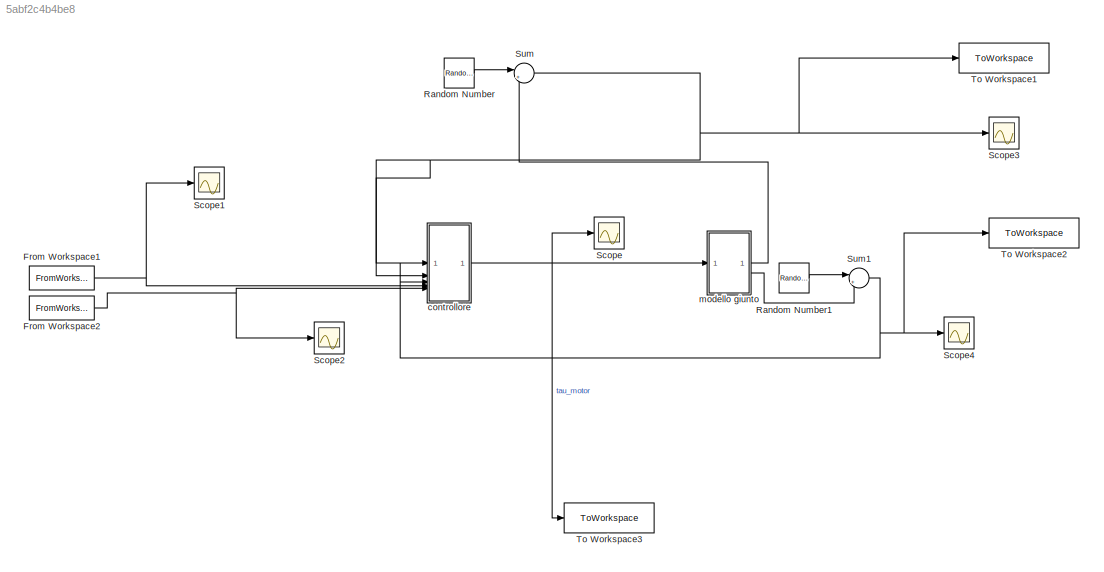
MODEL slx_5abf2c4b4be8
KIND model
CONFIG AbsTol = 1e-9
CONFIG EnableMultiTasking = off
CONFIG FixedStep = 0.001
CONFIG MaxStep = auto
CONFIG MinStep = auto
CONFIG RelTol = 1e-7
CONFIG SampleTimeConstraint = Unconstrained
CONFIG SolverName = ode45
CONFIG StartTime = 0.0
CONFIG StopTime = 10
BLOCK [FromWorkspace] From Workspace1
  OutputAfterFinalValue = Holding final value
  VariableName = tau_jd_input
BLOCK [FromWorkspace] From Workspace2
  OutputAfterFinalValue = Holding final value
  VariableName = theta_d_input
BLOCK [RandomNumber] Random Number
  SampleTime = 0.001
  Variance = 0
BLOCK [RandomNumber] Random Number1
  SampleTime = 0.001
  Variance = 0
BLOCK [Scope] Scope
  ActiveDisplayYMaximum = 329.83772179817618
  ActiveDisplayYMinimum = -346.7950077033837
  DataLoggingVariableName = ScopeData5
  Floating = off
  GraphicalSettings = {"Style":{"BackgroundColor":[0.12941176470588237,0.12941176470588237,0.12941176470588237],"AxesColor":[0.07058823529411765,0.07058823529411765,0.07058823529411765],"LabelsColor":[0.8509803921568627,0.8509803921568627,0.8509803921568627],"PreserveColors":false,"Visible":[true],"LineStyle":["-"],"LineWidth":[1.5],"BarWidth":[0.9],"LineColor":["auto"],"LineFaceAlpha":[1],"LineEdgeAlpha":[1],"Marker":...<+1999ch>
  MultipleDisplayCache = [{"MaxYLimMag":2.7765687867392996,"MaxYLimReal":329.83772179817618,"MinYLimMag":0,"MinYLimReal":-346.7950077033837,"PlotAsMagnitudePhase":false,"ShowGrid":true,"ShowLegend":false,"Title":"%<SignalLabel>","YLabel":""}]
  NumInputPorts = 1
  ScopeFrameLocation = window
  Visible = on
  WasSavedAsWebScope = on
  WindowPosition = [476.000000,281.000000,560.000000,420.000000,]
BLOCK [Scope] Scope1
  ActiveDisplayYMaximum = 1
  ActiveDisplayYMinimum = -1
  DataLoggingVariableName = ScopeData6
  Floating = off
  GraphicalSettings = {"Style":{"BackgroundColor":[0.12941176470588237,0.12941176470588237,0.12941176470588237],"AxesColor":[0.07058823529411765,0.07058823529411765,0.07058823529411765],"LabelsColor":[0.8509803921568627,0.8509803921568627,0.8509803921568627],"PreserveColors":false,"Visible":[true],"LineStyle":["-"],"LineWidth":[1.5],"BarWidth":[0.9],"LineColor":["auto"],"LineFaceAlpha":[1],"LineEdgeAlpha":[1],"Marker":...<+2014ch>
  MultipleDisplayCache = [{"MaxYLimMag":1,"MaxYLimReal":1,"MinYLimMag":0,"MinYLimReal":-1,"PlotAsMagnitudePhase":false,"ShowGrid":true,"ShowLegend":false,"Title":"%<SignalLabel>","YLabel":""}]
  NumInputPorts = 1
  ScopeFrameLocation = window
  WasSavedAsWebScope = on
  WindowPosition = [476.000000,281.000000,560.000000,420.000000,]
BLOCK [Scope] Scope2
  ActiveDisplayYMaximum = 1
  ActiveDisplayYMinimum = -1
  DataLoggingVariableName = ScopeData7
  Floating = off
  GraphicalSettings = {"Style":{"BackgroundColor":[0.12941176470588237,0.12941176470588237,0.12941176470588237],"AxesColor":[0.07058823529411765,0.07058823529411765,0.07058823529411765],"LabelsColor":[0.8509803921568627,0.8509803921568627,0.8509803921568627],"PreserveColors":false,"Visible":[true],"LineStyle":["-"],"LineWidth":[1.5],"BarWidth":[0.9],"LineColor":["auto"],"LineFaceAlpha":[1],"LineEdgeAlpha":[1],"Marker":...<+2014ch>
  MultipleDisplayCache = [{"MaxYLimMag":1,"MaxYLimReal":1,"MinYLimMag":0,"MinYLimReal":-1,"PlotAsMagnitudePhase":false,"ShowGrid":true,"ShowLegend":false,"Title":"%<SignalLabel>","YLabel":""}]
  NumInputPorts = 1
  ScopeFrameLocation = window
  WasSavedAsWebScope = on
  WindowPosition = [476.000000,281.000000,560.000000,420.000000,]
BLOCK [Scope] Scope3
  ActiveDisplayYMaximum = 16.890529809572982
  ActiveDisplayYMinimum = -11.562827971819823
  DataLoggingVariableName = ScopeData8
  Floating = off
  GraphicalSettings = {"Style":{"BackgroundColor":[0.12941176470588237,0.12941176470588237,0.12941176470588237],"AxesColor":[0.07058823529411765,0.07058823529411765,0.07058823529411765],"LabelsColor":[0.8509803921568627,0.8509803921568627,0.8509803921568627],"PreserveColors":false,"Visible":[true],"LineStyle":["-"],"LineWidth":[1.5],"BarWidth":[0.9],"LineColor":["auto"],"LineFaceAlpha":[1],"LineEdgeAlpha":[1],"Marker":...<+1991ch>
  MultipleDisplayCache = [{"MaxYLimMag":2.2624222804883605,"MaxYLimReal":16.890529809572982,"MinYLimMag":0,"MinYLimReal":-11.562827971819823,"PlotAsMagnitudePhase":false,"ShowGrid":true,"ShowLegend":false,"Title":"%<SignalLabel>","YLabel":""}]
  NumInputPorts = 1
  ScopeFrameLocation = window
  WasSavedAsWebScope = on
  WindowPosition = [724.000000,349.000000,560.000000,420.000000,]
BLOCK [Scope] Scope4
  ActiveDisplayYMaximum = 2.020941359764075E+15
  ActiveDisplayYMinimum = -6.07092860920146E+14
  DataLoggingVariableName = ScopeData9
  Floating = off
  GraphicalSettings = {"Style":{"BackgroundColor":[0.12941176470588237,0.12941176470588237,0.12941176470588237],"AxesColor":[0.07058823529411765,0.07058823529411765,0.07058823529411765],"LabelsColor":[0.8509803921568627,0.8509803921568627,0.8509803921568627],"PreserveColors":false,"Visible":[true],"LineStyle":["-"],"LineWidth":[1.5],"BarWidth":[0.9],"LineColor":["auto"],"LineFaceAlpha":[1],"LineEdgeAlpha":[1],"Marker":...<+1981ch>
  MultipleDisplayCache = [{"MaxYLimMag":4.4920838769461326,"MaxYLimReal":2.020941359764075E+15,"MinYLimMag":0,"MinYLimReal":-6.07092860920146E+14,"PlotAsMagnitudePhase":false,"ShowGrid":true,"ShowLegend":false,"Title":"%<SignalLabel>","YLabel":""}]
  NumInputPorts = 1
  ScopeFrameLocation = window
  Visible = on
  WasSavedAsWebScope = on
  WindowPosition = [163.000000,349.000000,560.000000,420.000000,]
BLOCK [Sum] Sum
  Inputs = |++
BLOCK [Sum] Sum1
  Inputs = |++
BLOCK [ToWorkspace] To Workspace1
  MaxDataPoints = inf
  SampleTime = -1
  SaveFormat = Timeseries
  VariableName = theta
BLOCK [ToWorkspace] To Workspace2
  MaxDataPoints = inf
  SampleTime = -1
  SaveFormat = Timeseries
  VariableName = tau_J
BLOCK [ToWorkspace] To Workspace3
  FixptAsFi = on
  MaxDataPoints = inf
  SampleTime = -1
  SaveFormat = Timeseries
  VariableName = tau_ctrl
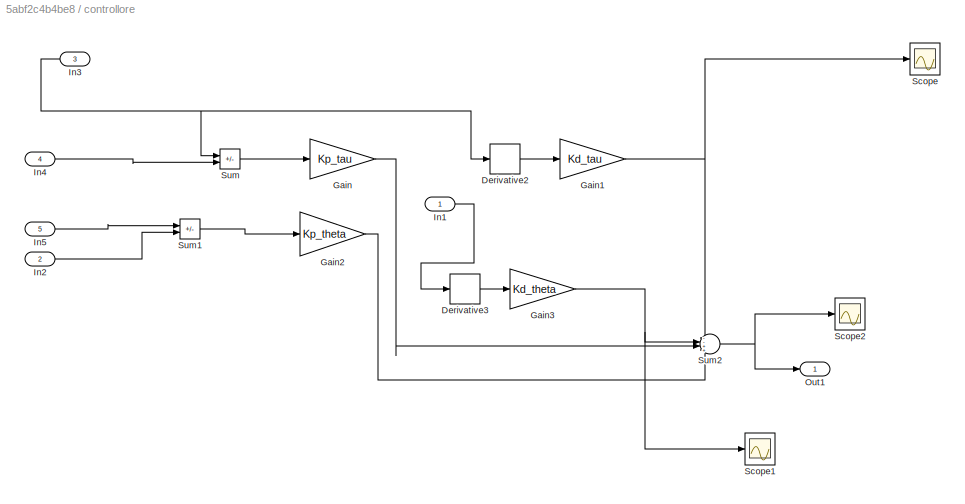
BLOCK [SubSystem] controllore
BLOCK [Derivative] controllore/Derivative2
BLOCK [Derivative] controllore/Derivative3
BLOCK [Gain] controllore/Gain
  Gain = Kp_tau
BLOCK [Gain] controllore/Gain1
  Gain = Kd_tau
BLOCK [Gain] controllore/Gain2
  Gain = Kp_theta
BLOCK [Gain] controllore/Gain3
  Gain = Kd_theta
BLOCK [Inport] controllore/In1
BLOCK [Inport] controllore/In2
  Port = 2
BLOCK [Inport] controllore/In3
  Port = 3
BLOCK [Inport] controllore/In4
  Port = 4
BLOCK [Inport] controllore/In5
  Port = 5
BLOCK [Outport] controllore/Out1
BLOCK [Scope] controllore/Scope
  ActiveDisplayYMaximum = 5822.552631567678
  ActiveDisplayYMinimum = -6371.606522150747
  DataLoggingVariableName = ScopeData3
  Floating = off
  GraphicalSettings = {"Style":{"BackgroundColor":[0.12941176470588237,0.12941176470588237,0.12941176470588237],"AxesColor":[0.07058823529411765,0.07058823529411765,0.07058823529411765],"LabelsColor":[0.8509803921568627,0.8509803921568627,0.8509803921568627],"PreserveColors":false,"Visible":[true],"LineStyle":["-"],"LineWidth":[1.5],"BarWidth":[0.9],"LineColor":["auto"],"LineFaceAlpha":[1],"LineEdgeAlpha":[1],"Marker":...<+1991ch>
  MultipleDisplayCache = [{"MaxYLimMag":1.9581780189109694,"MaxYLimReal":5822.552631567678,"MinYLimMag":0,"MinYLimReal":-6371.606522150747,"PlotAsMagnitudePhase":false,"ShowGrid":true,"ShowLegend":false,"Title":"%<SignalLabel>","YLabel":""}]
  NumInputPorts = 1
  ScopeFrameLocation = window
  WasSavedAsWebScope = on
  WindowPosition = [259.000000,131.000000,560.000000,420.000000,]
BLOCK [Scope] controllore/Scope1
  ActiveDisplayYMaximum = 96.298420272429112
  ActiveDisplayYMinimum = -60.078386734880489
  DataLoggingVariableName = ScopeData4
  Floating = off
  GraphicalSettings = {"Style":{"BackgroundColor":[0.12941176470588237,0.12941176470588237,0.12941176470588237],"AxesColor":[0.07058823529411765,0.07058823529411765,0.07058823529411765],"LabelsColor":[0.8509803921568627,0.8509803921568627,0.8509803921568627],"PreserveColors":false,"Visible":[true],"LineStyle":["-"],"LineWidth":[1.5],"BarWidth":[0.9],"LineColor":["auto"],"LineFaceAlpha":[1],"LineEdgeAlpha":[1],"Marker":...<+2007ch>
  MultipleDisplayCache = [{"MaxYLimMag":1.9388213446388174,"MaxYLimReal":96.298420272429112,"MinYLimMag":0,"MinYLimReal":-60.078386734880489,"PlotAsMagnitudePhase":false,"ShowGrid":true,"ShowLegend":false,"Title":"%<SignalLabel>","YLabel":""}]
  NumInputPorts = 1
  ScopeFrameLocation = window
  WasSavedAsWebScope = on
  WindowPosition = [776.000000,132.000000,560.000000,420.000000,]
BLOCK [Scope] controllore/Scope2
  ActiveDisplayYMaximum = 2405.0224937241392
  ActiveDisplayYMinimum = -1867.9248565799312
  DataLoggingVariableName = ScopeData10
  Floating = off
  GraphicalSettings = {"AxesScalingProperties":{"AlignXAxis":"Center","AlignYAxis":"Center","AutoScaleXAxisLimits":false,"AxesScaling":"Manual","AxesScalingNumUpdates":10,"ExpandOnly":true,"ScaleAxesLimitsAtStop":false,"XAxisDataRange":100,"YAxisDataRange":80},"DisplayProperties":{"ColorOrder":["auto","auto","auto","auto","auto","auto","auto","auto","auto","auto","auto","auto","auto","auto","auto","auto","auto","auto",...<+1998ch>
  MultipleDisplayCache = [{"MaxYLimMag":1.9388213446388174,"MaxYLimReal":2405.0224937241392,"MinYLimMag":0,"MinYLimReal":-1867.9248565799312,"PlotAsMagnitudePhase":false,"ShowGrid":true,"ShowLegend":false,"Title":"%<SignalLabel>","YLabel":""}]
  NumInputPorts = 1
  ScopeFrameLocation = window
  WasSavedAsWebScope = on
  WindowPosition = [776.000000,132.000000,560.000000,420.000000,]
BLOCK [Sum] controllore/Sum
  IconShape = rectangular
  Inputs = -+
BLOCK [Sum] controllore/Sum1
  IconShape = rectangular
  Inputs = +-
BLOCK [Sum] controllore/Sum2
  Inputs = --++
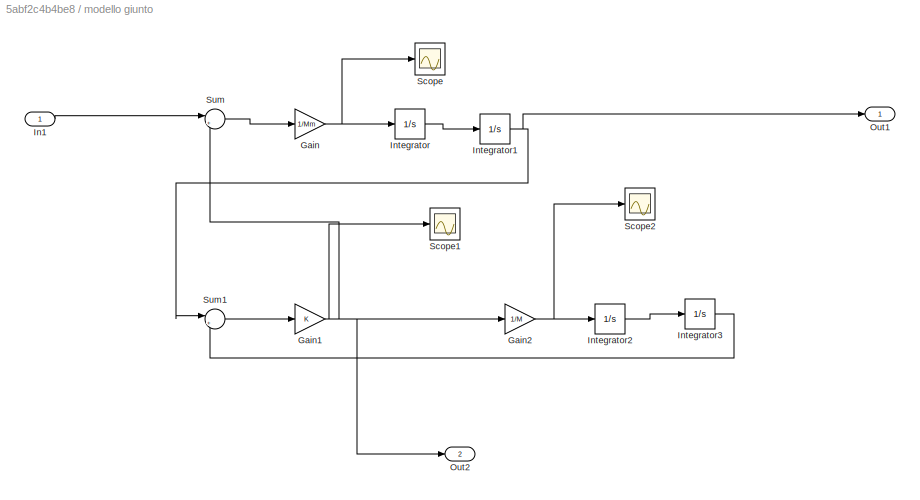
BLOCK [SubSystem] modello giunto
BLOCK [Gain] modello giunto/Gain
  Gain = 1/Mm
BLOCK [Gain] modello giunto/Gain1
  Gain = K
BLOCK [Gain] modello giunto/Gain2
  Gain = 1/M
BLOCK [Inport] modello giunto/In1
BLOCK [Integrator] modello giunto/Integrator
BLOCK [Integrator] modello giunto/Integrator1
BLOCK [Integrator] modello giunto/Integrator2
BLOCK [Integrator] modello giunto/Integrator3
BLOCK [Outport] modello giunto/Out1
BLOCK [Outport] modello giunto/Out2
  Port = 2
BLOCK [Scope] modello giunto/Scope
  ActiveDisplayYMaximum = 53.660873476191959
  ActiveDisplayYMinimum = -11.120378605520472
  Floating = off
  GraphicalSettings = {"Style":{"BackgroundColor":[0.12941176470588237,0.12941176470588237,0.12941176470588237],"AxesColor":[0.07058823529411765,0.07058823529411765,0.07058823529411765],"LabelsColor":[0.8509803921568627,0.8509803921568627,0.8509803921568627],"PreserveColors":false,"Visible":[true],"LineStyle":["-"],"LineWidth":[1.5],"BarWidth":[0.9],"LineColor":["auto"],"LineFaceAlpha":[1],"LineEdgeAlpha":[1],"Marker":...<+1932ch>
  MultipleDisplayCache = [{"MaxYLimMag":53.660873476191959,"MaxYLimReal":53.660873476191959,"MinYLimMag":0,"MinYLimReal":-11.120378605520472,"PlotAsMagnitudePhase":false,"ShowGrid":true,"ShowLegend":false,"Title":"%<SignalLabel>","YLabel":""}]
  NumInputPorts = 1
  ScopeFrameLocation = window
  WasSavedAsWebScope = on
  WindowPosition = [476.000000,281.000000,560.000000,420.000000,]
BLOCK [Scope] modello giunto/Scope1
  ActiveDisplayYMaximum = 10.00811088374217
  ActiveDisplayYMinimum = -9.8963676788809423
  DataLoggingVariableName = ScopeData1
  Floating = off
  GraphicalSettings = {"Style":{"BackgroundColor":[0.12941176470588237,0.12941176470588237,0.12941176470588237],"AxesColor":[0.07058823529411765,0.07058823529411765,0.07058823529411765],"LabelsColor":[0.8509803921568627,0.8509803921568627,0.8509803921568627],"PreserveColors":false,"Visible":[true],"LineStyle":["-"],"LineWidth":[1.5],"BarWidth":[0.9],"LineColor":["auto"],"LineFaceAlpha":[1],"LineEdgeAlpha":[1],"Marker":...<+2038ch>
  MultipleDisplayCache = [{"MaxYLimMag":10.00811088374217,"MaxYLimReal":10.00811088374217,"MinYLimMag":0,"MinYLimReal":-9.8963676788809423,"PlotAsMagnitudePhase":false,"ShowGrid":true,"ShowLegend":false,"Title":"%<SignalLabel>","YLabel":""}]
  NumInputPorts = 1
  ScopeFrameLocation = window
  WasSavedAsWebScope = on
  WindowPosition = [476.000000,281.000000,560.000000,420.000000,]
BLOCK [Scope] modello giunto/Scope2
  ActiveDisplayYMaximum = 4.09748
  ActiveDisplayYMinimum = -3.76702
  DataLoggingVariableName = ScopeData2
  Floating = off
  GraphicalSettings = {"GraphicalSettings":{"LegacySettings":true,"Style":{"Style":{"AxesColor":"[0 0 0]","ChannelNames":[""],"ColorOrder":"[1 0.909803921568627 0.392156862745098;0.149019607843137 0.549019607843137 0.866666666666667;0.96078431372549 0.466666666666667 0.16078431372549;0.286274509803922 0.858823529411765 0.250980392156863;0.752941176470588 0.36078431372549 0.984313725490196;0.423529411764706 0.9568627450...<+432ch>
  MultipleDisplayCache = [{"MaxYLimMag":4.09748,"MaxYLimReal":4.09748,"MinYLimMag":0,"MinYLimReal":-3.76702,"PlotAsMagnitudePhase":false,"ShowGrid":true,"ShowLegend":false,"Title":"%<SignalLabel>","YLabel":""}]
  NumInputPorts = 1
  WasSavedAsWebScope = on
BLOCK [Sum] modello giunto/Sum
  Inputs = |+-
BLOCK [Sum] modello giunto/Sum1
  Inputs = |+-
NET From Workspace1:1 -> Scope1:1, controllore:4
NET From Workspace2:1 -> Scope2:1, controllore:5
LINE Random Number1:1 -> Sum1:1
LINE Random Number:1 -> Sum:1
NET Sum1:1 -> Scope4:1, To Workspace2:1, controllore:3
NET Sum:1 -> Scope3:1, To Workspace1:1, controllore:1, controllore:2
LINE controllore/Derivative2:1 -> controllore/Gain1:1
LINE controllore/Derivative3:1 -> controllore/Gain3:1
NET controllore/Gain1:1 -> controllore/Scope:1, controllore/Sum2:1
LINE controllore/Gain2:1 -> controllore/Sum2:4
NET controllore/Gain3:1 -> controllore/Scope1:1, controllore/Sum2:2
LINE controllore/Gain:1 -> controllore/Sum2:3
LINE controllore/In1:1 -> controllore/Derivative3:1
LINE controllore/In2:1 -> controllore/Sum1:2
NET controllore/In3:1 -> controllore/Derivative2:1, controllore/Sum:1
LINE controllore/In4:1 -> controllore/Sum:2
LINE controllore/In5:1 -> controllore/Sum1:1
LINE controllore/Sum1:1 -> controllore/Gain2:1
NET controllore/Sum2:1 -> controllore/Out1:1, controllore/Scope2:1
LINE controllore/Sum:1 -> controllore/Gain:1
NET controllore:1 -> Scope:1, To Workspace3:1, modello giunto:1
NET modello giunto/Gain1:1 -> modello giunto/Gain2:1, modello giunto/Out2:1, modello giunto/Scope1:1, modello giunto/Sum:2
NET modello giunto/Gain2:1 -> modello giunto/Integrator2:1, modello giunto/Scope2:1
NET modello giunto/Gain:1 -> modello giunto/Integrator:1, modello giunto/Scope:1
LINE modello giunto/In1:1 -> modello giunto/Sum:1
NET modello giunto/Integrator1:1 -> modello giunto/Out1:1, modello giunto/Sum1:1
LINE modello giunto/Integrator2:1 -> modello giunto/Integrator3:1
LINE modello giunto/Integrator3:1 -> modello giunto/Sum1:2
LINE modello giunto/Integrator:1 -> modello giunto/Integrator1:1
LINE modello giunto/Sum1:1 -> modello giunto/Gain1:1
LINE modello giunto/Sum:1 -> modello giunto/Gain:1
LINE modello giunto:1 -> Sum:2
LINE modello giunto:2 -> Sum1:2
note: NET lines group one-source signal fan-out (src -> all destinations, sorted); 1:1 wires keep LINE
